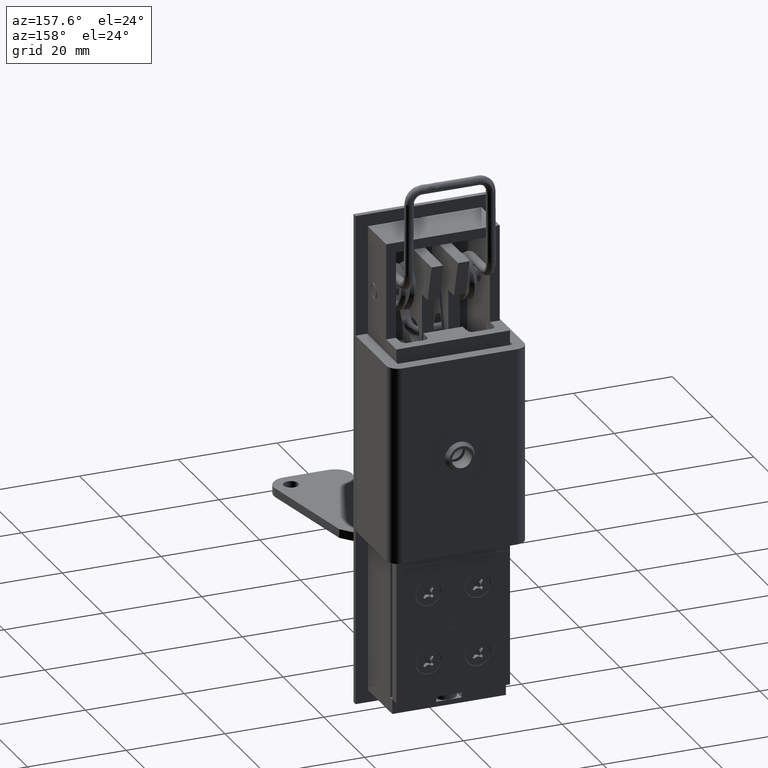
[diagram: clean part render]
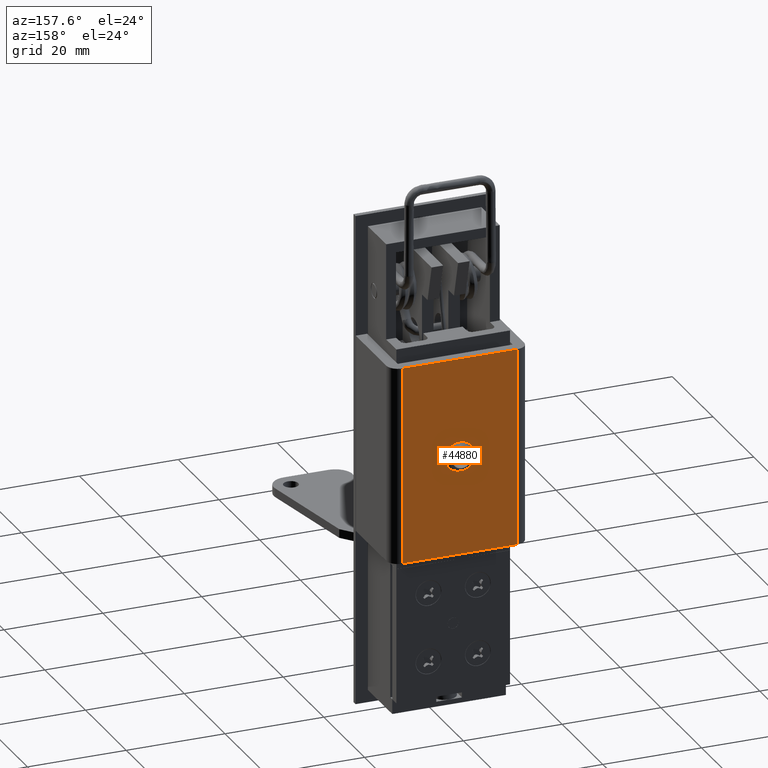
[diagram: same view with one face highlighted and labeled with its STEP entity id]
A machine part, auxiliary view. The second image highlights one B-rep face of the part: STEP entity #44880.
In plain terms, the highlighted face is a freeform B-spline surface patch.
Its self-contained STEP definition (entity closure, byte-faithful):
#44373=CARTESIAN_POINT('',(18.300000001443749,2.381971194261217,53.676209107885498));
#44374=VERTEX_POINT('',#44373);
#44388=CARTESIAN_POINT('',(18.300000000000001,-2.482032E-016,58.500000000000000));
#44389=VERTEX_POINT('',#44388);
#44390=CARTESIAN_POINT('',(18.300000000000001,-2.482032E-016,58.500000000000000));
#44391=CARTESIAN_POINT('',(18.300000000000001,2.999999999999999,58.499999999999993));
#44392=CARTESIAN_POINT('',(18.300000000000001,3.0,55.500000000000000));
#44393=CARTESIAN_POINT('',(18.299999999999997,3.0,54.483388709903572));
#44394=CARTESIAN_POINT('',(18.300000001443756,2.381971194261218,53.676209107885498));
#44402=(BOUNDED_CURVE()B_SPLINE_CURVE(2,(#44390,#44391,#44392,#44393,#44394),.UNSPECIFIED.,.F.,.U.)B_SPLINE_CURVE_WITH_KNOTS((3,2,3),(0.0,0.250000000000000,0.355061816248126),.UNSPECIFIED.)CURVE()GEOMETRIC_REPRESENTATION_ITEM()RATIONAL_B_SPLINE_CURVE((1.0,0.707106781186548,1.0,0.876912425858796,0.857279284492398))REPRESENTATION_ITEM(''));
#44403=EDGE_CURVE('',#44389,#44374,#44402,.T.);
#44405=CARTESIAN_POINT('',(18.300000000142958,-1.957036078471414,53.226234447789849));
#44406=VERTEX_POINT('',#44405);
#44407=CARTESIAN_POINT('',(18.300000000142958,-1.957036078471414,53.226234447789849));
#44408=CARTESIAN_POINT('',(18.299999999999994,-3.000000000000000,54.123916278023820));
#44409=CARTESIAN_POINT('',(18.300000000000001,-3.0,55.500000000000000));
#44410=CARTESIAN_POINT('',(18.300000000000001,-3.0,58.499999999999993));
#44411=CARTESIAN_POINT('',(18.300000000000001,-2.482032E-016,58.500000000000000));
#44419=(BOUNDED_CURVE()B_SPLINE_CURVE(2,(#44407,#44408,#44409,#44410,#44411),.UNSPECIFIED.,.F.,.U.)B_SPLINE_CURVE_WITH_KNOTS((3,2,3),(0.613719864926480,0.750000000000000,1.0),.UNSPECIFIED.)CURVE()GEOMETRIC_REPRESENTATION_ITEM()RATIONAL_B_SPLINE_CURVE((0.854745971619175,0.840337890311939,1.0,0.707106781186548,1.0))REPRESENTATION_ITEM(''));
#44420=EDGE_CURVE('',#44406,#44389,#44419,.T.);
#44477=CARTESIAN_POINT('',(18.300000000000001,-2.482032E-016,52.500000000000000));
#44478=VERTEX_POINT('',#44477);
#44479=CARTESIAN_POINT('',(18.300000000000001,-2.482032E-016,52.500000000000000));
#44480=CARTESIAN_POINT('',(18.300000000000004,-1.113266825679354,52.500000000000007));
#44481=CARTESIAN_POINT('',(18.300000000142962,-1.957036078471413,53.226234447789857));
#44489=(BOUNDED_CURVE()B_SPLINE_CURVE(2,(#44479,#44480,#44481),.UNSPECIFIED.,.F.,.U.)B_SPLINE_CURVE_WITH_KNOTS((3,3),(0.500000000000000,0.613719864926480),.UNSPECIFIED.)CURVE()GEOMETRIC_REPRESENTATION_ITEM()RATIONAL_B_SPLINE_CURVE((1.0,0.866768890874609,0.854745971619174))REPRESENTATION_ITEM(''));
#44490=EDGE_CURVE('',#44478,#44406,#44489,.T.);
#44492=CARTESIAN_POINT('',(18.300000001443756,2.381971194261218,53.676209107885498));
#44493=CARTESIAN_POINT('',(18.300000000000001,1.481389584394627,52.500000000000000));
#44494=CARTESIAN_POINT('',(18.300000000000001,-2.482032E-016,52.500000000000000));
#44502=(BOUNDED_CURVE()B_SPLINE_CURVE(2,(#44492,#44493,#44494),.UNSPECIFIED.,.F.,.U.)B_SPLINE_CURVE_WITH_KNOTS((3,3),(0.355061816248126,0.500000000000000),.UNSPECIFIED.)CURVE()GEOMETRIC_REPRESENTATION_ITEM()RATIONAL_B_SPLINE_CURVE((0.857279284492398,0.830194355327752,1.0))REPRESENTATION_ITEM(''));
#44503=EDGE_CURVE('',#44374,#44478,#44502,.T.);
#44596=CARTESIAN_POINT('',(18.300000000000001,-11.650000000000000,75.500010000000003));
#44597=VERTEX_POINT('',#44596);
#44611=CARTESIAN_POINT('',(18.300000000000001,11.650000000000000,75.500010000000003));
#44612=VERTEX_POINT('',#44611);
#44613=CARTESIAN_POINT('',(18.300000000000001,11.650000000000000,75.500010000000003));
#44614=CARTESIAN_POINT('',(18.300000000000001,-11.650000000000000,75.500010000000003));
#44615=QUASI_UNIFORM_CURVE('',1,(#44613,#44614),.UNSPECIFIED.,.F.,.U.);
#44616=EDGE_CURVE('',#44612,#44597,#44615,.T.);
#44648=CARTESIAN_POINT('',(18.300000000000001,11.650000000000000,35.500000000000000));
#44649=VERTEX_POINT('',#44648);
#44663=CARTESIAN_POINT('',(18.300000000000001,-11.650000000000000,35.500000000000000));
#44664=VERTEX_POINT('',#44663);
#44665=CARTESIAN_POINT('',(18.300000000000001,11.650000000000000,35.500000000000000));
#44666=CARTESIAN_POINT('',(18.300000000000001,-11.650000000000000,35.500000000000000));
#44667=QUASI_UNIFORM_CURVE('',1,(#44665,#44666),.UNSPECIFIED.,.F.,.U.);
#44668=EDGE_CURVE('',#44649,#44664,#44667,.T.);
#44851=CARTESIAN_POINT('',(18.300000000000001,-11.650000000000000,35.500000000000000));
#44852=CARTESIAN_POINT('',(18.300000000000001,-11.650000000000000,75.500010000000003));
#44853=QUASI_UNIFORM_CURVE('',1,(#44851,#44852),.UNSPECIFIED.,.F.,.U.);
#44854=EDGE_CURVE('',#44664,#44597,#44853,.T.);
#44859=CARTESIAN_POINT('',(18.300000000000001,-12.813834652872391,33.501999720935913));
#44860=CARTESIAN_POINT('',(18.300000000000001,-12.813834652872391,77.498008490924292));
#44861=CARTESIAN_POINT('',(18.300000000000001,12.813833819599450,33.501999720935913));
#44862=CARTESIAN_POINT('',(18.300000000000001,12.813833819599450,77.498008490924292));
#44863=B_SPLINE_SURFACE_WITH_KNOTS('',1,1,((#44859,#44861),(#44860,#44862)),.UNSPECIFIED.,.F.,.F.,.U.,(2,2),(2,2),(0.0,43.996008769988379),(0.0,25.627668472471839),.UNSPECIFIED.);
#44864=ORIENTED_EDGE('',*,*,#44616,.T.);
#44865=ORIENTED_EDGE('',*,*,#44854,.F.);
#44866=ORIENTED_EDGE('',*,*,#44668,.F.);
#44867=CARTESIAN_POINT('',(18.300000000000001,11.650000000000000,35.500000000000000));
#44868=CARTESIAN_POINT('',(18.300000000000001,11.650000000000000,75.500010000000003));
#44869=QUASI_UNIFORM_CURVE('',1,(#44867,#44868),.UNSPECIFIED.,.F.,.U.);
#44870=EDGE_CURVE('',#44649,#44612,#44869,.T.);
#44871=ORIENTED_EDGE('',*,*,#44870,.T.);
#44872=EDGE_LOOP('',(#44864,#44865,#44866,#44871));
#44873=FACE_OUTER_BOUND('',#44872,.T.);
#44874=ORIENTED_EDGE('',*,*,#44403,.T.);
#44875=ORIENTED_EDGE('',*,*,#44503,.T.);
#44876=ORIENTED_EDGE('',*,*,#44490,.T.);
#44877=ORIENTED_EDGE('',*,*,#44420,.T.);
#44878=EDGE_LOOP('',(#44874,#44875,#44876,#44877));
#44879=FACE_BOUND('',#44878,.T.);
#44880=ADVANCED_FACE('',(#44873,#44879),#44863,.F.);